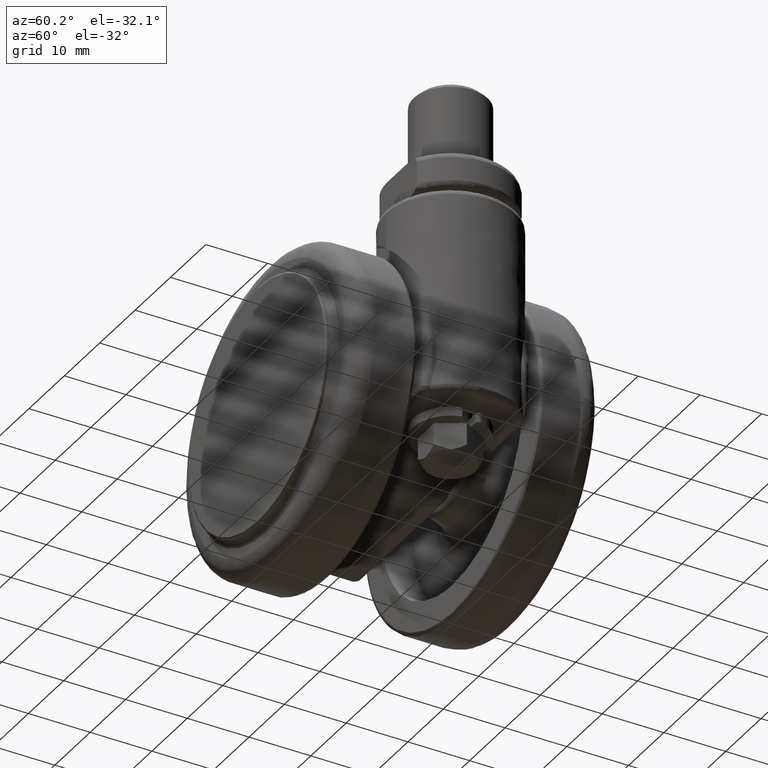
[diagram: clean part render]
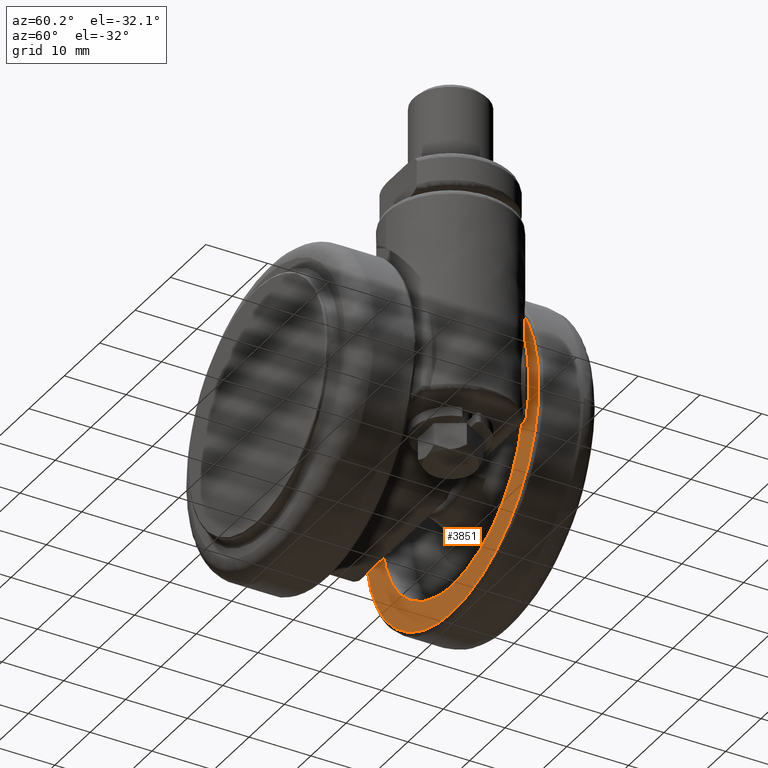
[diagram: same view with one face highlighted and labeled with its STEP entity id]
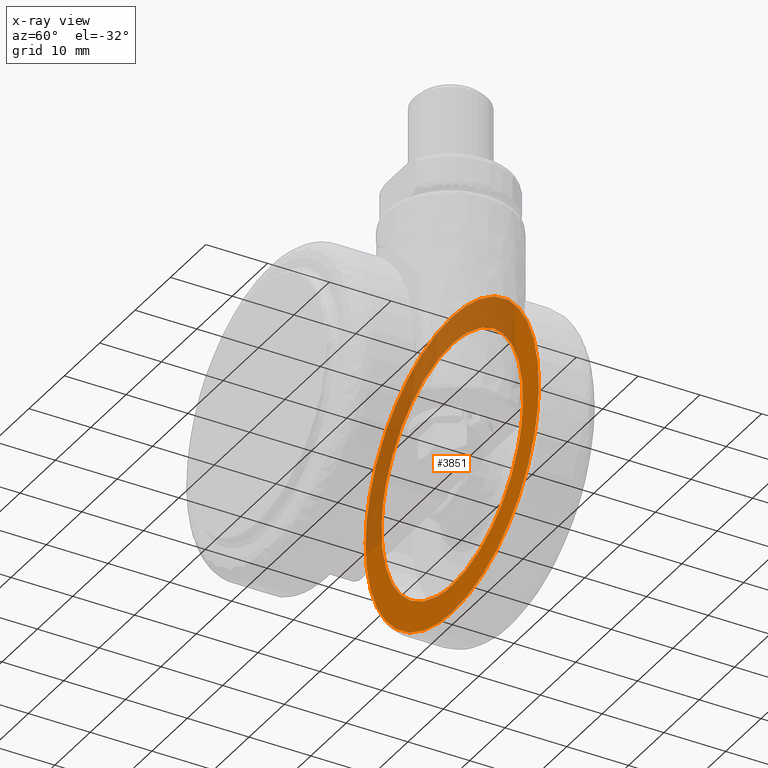
[diagram: x-ray of the same camera — body ghosted, the highlighted face saturated]
A machine part, auxiliary view. The second image highlights one B-rep face of the part: STEP entity #3851.
The next image is the same camera in x-ray: the body ghosted, the highlighted face saturated — about 41% of this face is hidden behind the body in this view.
In plain terms, the highlighted face is a freeform B-spline surface patch.
Its self-contained STEP definition (entity closure, byte-faithful):
#3671=CARTESIAN_POINT('',(-19.962697501510871,10.0,1.220945724649967));
#3672=VERTEX_POINT('',#3671);
#3678=CARTESIAN_POINT('',(1.224606E-015,10.0,-20.0));
#3679=VERTEX_POINT('',#3678);
#3680=CARTESIAN_POINT('',(-19.962697501510863,10.000000000000002,1.220945724649968));
#3681=CARTESIAN_POINT('',(-19.999999999984482,10.000000000000004,0.611042697807070));
#3682=CARTESIAN_POINT('',(-19.999999999984730,10.0,-9.353196E-013));
#3683=CARTESIAN_POINT('',(-19.999999999992600,10.000000000000004,-20.000000000000451));
#3684=CARTESIAN_POINT('',(1.224606E-015,10.0,-20.0));
#3692=(BOUNDED_CURVE()B_SPLINE_CURVE(2,(#3680,#3681,#3682,#3683,#3684),.UNSPECIFIED.,.F.,.U.)B_SPLINE_CURVE_WITH_KNOTS((3,2,3),(0.239333178899412,0.250000000000000,0.500000000000000),.UNSPECIFIED.)CURVE()GEOMETRIC_REPRESENTATION_ITEM()RATIONAL_B_SPLINE_CURVE((0.976072506011785,0.987503041733366,1.0,0.707106781186548,1.0))REPRESENTATION_ITEM(''));
#3693=EDGE_CURVE('',#3672,#3679,#3692,.T.);
#3695=CARTESIAN_POINT('',(19.962697501510871,9.999999999999998,-1.220945724649964));
#3696=VERTEX_POINT('',#3695);
#3697=CARTESIAN_POINT('',(1.224606E-015,10.0,-20.0));
#3698=CARTESIAN_POINT('',(18.814145006109651,9.999999999999996,-19.999999999999520));
#3699=CARTESIAN_POINT('',(19.962697501510871,10.000000000000002,-1.220945724649964));
#3707=(BOUNDED_CURVE()B_SPLINE_CURVE(2,(#3697,#3698,#3699),.UNSPECIFIED.,.F.,.U.)B_SPLINE_CURVE_WITH_KNOTS((3,3),(0.500000000000000,0.739333178899412),.UNSPECIFIED.)CURVE()GEOMETRIC_REPRESENTATION_ITEM()RATIONAL_B_SPLINE_CURVE((1.0,0.719603739453182,0.976072506011785))REPRESENTATION_ITEM(''));
#3708=EDGE_CURVE('',#3679,#3696,#3707,.T.);
#3740=CARTESIAN_POINT('',(1.224606E-015,10.0,20.0));
#3741=VERTEX_POINT('',#3740);
#3742=CARTESIAN_POINT('',(19.962697501510871,10.000000000000002,-1.220945724649964));
#3743=CARTESIAN_POINT('',(19.999999999984482,9.999999999999996,-0.611042697807071));
#3744=CARTESIAN_POINT('',(19.999999999984720,9.999999999999996,9.295022E-013));
#3745=CARTESIAN_POINT('',(19.999999999992600,9.999999999999996,20.000000000000451));
#3746=CARTESIAN_POINT('',(1.224606E-015,10.0,20.0));
#3754=(BOUNDED_CURVE()B_SPLINE_CURVE(2,(#3742,#3743,#3744,#3745,#3746),.UNSPECIFIED.,.F.,.U.)B_SPLINE_CURVE_WITH_KNOTS((3,2,3),(0.739333178899412,0.750000000000000,1.0),.UNSPECIFIED.)CURVE()GEOMETRIC_REPRESENTATION_ITEM()RATIONAL_B_SPLINE_CURVE((0.976072506011785,0.987503041733366,1.0,0.707106781186548,1.0))REPRESENTATION_ITEM(''));
#3755=EDGE_CURVE('',#3696,#3741,#3754,.T.);
#3757=CARTESIAN_POINT('',(1.224606E-015,10.0,20.0));
#3758=CARTESIAN_POINT('',(-18.814145006109648,10.000000000000002,19.999999999999517));
#3759=CARTESIAN_POINT('',(-19.962697501510863,10.000000000000002,1.220945724649968));
#3767=(BOUNDED_CURVE()B_SPLINE_CURVE(2,(#3757,#3758,#3759),.UNSPECIFIED.,.F.,.U.)B_SPLINE_CURVE_WITH_KNOTS((3,3),(0.0,0.239333178899412),.UNSPECIFIED.)CURVE()GEOMETRIC_REPRESENTATION_ITEM()RATIONAL_B_SPLINE_CURVE((1.0,0.719603739453182,0.976072506011785))REPRESENTATION_ITEM(''));
#3768=EDGE_CURVE('',#3741,#3672,#3767,.T.);
#3774=CARTESIAN_POINT('',(26.945422241621539,9.999999999999996,26.947549905028492));
#3775=CARTESIAN_POINT('',(26.945422241621539,9.999999999999996,-26.947551219310910));
#3776=CARTESIAN_POINT('',(-26.945423555800190,10.0,26.947549905028492));
#3777=CARTESIAN_POINT('',(-26.945423555800190,10.0,-26.947551219310910));
#3778=B_SPLINE_SURFACE_WITH_KNOTS('',1,1,((#3774,#3776),(#3775,#3777)),.UNSPECIFIED.,.F.,.F.,.U.,(2,2),(2,2),(0.0,53.895101124339398),(0.0,53.890845797421733),.UNSPECIFIED.);
#3779=CARTESIAN_POINT('',(1.224606E-015,10.0,24.500000000000000));
#3780=VERTEX_POINT('',#3779);
#3781=CARTESIAN_POINT('',(-24.498065584676379,10.0,0.307867977168221));
#3782=VERTEX_POINT('',#3781);
#3783=CARTESIAN_POINT('',(1.224606E-015,10.0,24.500000000000000));
#3784=CARTESIAN_POINT('',(-24.194042283565796,10.000000000000002,24.500000000010569));
#3785=CARTESIAN_POINT('',(-24.498065584676386,10.000000000000004,0.307867977168221));
#3793=(BOUNDED_CURVE()B_SPLINE_CURVE(2,(#3783,#3784,#3785),.UNSPECIFIED.,.F.,.U.)B_SPLINE_CURVE_WITH_KNOTS((3,3),(0.0,0.247784295921693),.UNSPECIFIED.)CURVE()GEOMETRIC_REPRESENTATION_ITEM()RATIONAL_B_SPLINE_CURVE((1.0,0.709702639984282,0.994854295643931))REPRESENTATION_ITEM(''));
#3794=EDGE_CURVE('',#3780,#3782,#3793,.T.);
#3795=ORIENTED_EDGE('',*,*,#3794,.T.);
#3796=CARTESIAN_POINT('',(1.224606E-015,10.0,-24.500000000000000));
#3797=VERTEX_POINT('',#3796);
#3798=CARTESIAN_POINT('',(-24.498065584676386,10.000000000000004,0.307867977168221));
#3799=CARTESIAN_POINT('',(-24.500000001677730,10.000000000000004,0.153940065824850));
#3800=CARTESIAN_POINT('',(-24.500000001672440,10.0,2.101664E-011));
#3801=CARTESIAN_POINT('',(-24.500000000830958,10.000000000000004,-24.499999999989559));
#3802=CARTESIAN_POINT('',(1.224606E-015,10.0,-24.500000000000000));
#3810=(BOUNDED_CURVE()B_SPLINE_CURVE(2,(#3798,#3799,#3800,#3801,#3802),.UNSPECIFIED.,.F.,.U.)B_SPLINE_CURVE_WITH_KNOTS((3,2,3),(0.247784295921693,0.250000000000000,0.500000000000000),.UNSPECIFIED.)CURVE()GEOMETRIC_REPRESENTATION_ITEM()RATIONAL_B_SPLINE_CURVE((0.994854295643931,0.997404141202266,1.0,0.707106781186547,1.0))REPRESENTATION_ITEM(''));
#3811=EDGE_CURVE('',#3782,#3797,#3810,.T.);
#3812=ORIENTED_EDGE('',*,*,#3811,.T.);
#3813=CARTESIAN_POINT('',(24.498065584676379,9.999999999999996,-0.307867977168219));
#3814=VERTEX_POINT('',#3813);
#3815=CARTESIAN_POINT('',(1.224606E-015,10.0,-24.500000000000000));
#3816=CARTESIAN_POINT('',(24.194042283565800,9.999999999999996,-24.500000000010573));
#3817=CARTESIAN_POINT('',(24.498065584676382,9.999999999999996,-0.307867977168219));
#3825=(BOUNDED_CURVE()B_SPLINE_CURVE(2,(#3815,#3816,#3817),.UNSPECIFIED.,.F.,.U.)B_SPLINE_CURVE_WITH_KNOTS((3,3),(0.500000000000000,0.747784295921693),.UNSPECIFIED.)CURVE()GEOMETRIC_REPRESENTATION_ITEM()RATIONAL_B_SPLINE_CURVE((1.0,0.709702639984281,0.994854295643931))REPRESENTATION_ITEM(''));
#3826=EDGE_CURVE('',#3797,#3814,#3825,.T.);
#3827=ORIENTED_EDGE('',*,*,#3826,.T.);
#3828=CARTESIAN_POINT('',(24.498065584676382,9.999999999999996,-0.307867977168219));
#3829=CARTESIAN_POINT('',(24.500000001677737,9.999999999999996,-0.153940065824852));
#3830=CARTESIAN_POINT('',(24.500000001672440,9.999999999999998,-2.102254E-011));
#3831=CARTESIAN_POINT('',(24.500000000830958,9.999999999999998,24.499999999989544));
#3832=CARTESIAN_POINT('',(1.224606E-015,10.0,24.500000000000000));
#3840=(BOUNDED_CURVE()B_SPLINE_CURVE(2,(#3828,#3829,#3830,#3831,#3832),.UNSPECIFIED.,.F.,.U.)B_SPLINE_CURVE_WITH_KNOTS((3,2,3),(0.747784295921693,0.750000000000000,1.0),.UNSPECIFIED.)CURVE()GEOMETRIC_REPRESENTATION_ITEM()RATIONAL_B_SPLINE_CURVE((0.994854295643931,0.997404141202266,1.0,0.707106781186547,1.0))REPRESENTATION_ITEM(''));
#3841=EDGE_CURVE('',#3814,#3780,#3840,.T.);
#3842=ORIENTED_EDGE('',*,*,#3841,.T.);
#3843=EDGE_LOOP('',(#3795,#3812,#3827,#3842));
#3844=FACE_OUTER_BOUND('',#3843,.T.);
#3845=ORIENTED_EDGE('',*,*,#3708,.F.);
#3846=ORIENTED_EDGE('',*,*,#3693,.F.);
#3847=ORIENTED_EDGE('',*,*,#3768,.F.);
#3848=ORIENTED_EDGE('',*,*,#3755,.F.);
#3849=EDGE_LOOP('',(#3845,#3846,#3847,#3848));
#3850=FACE_BOUND('',#3849,.T.);
#3851=ADVANCED_FACE('',(#3844,#3850),#3778,.F.);